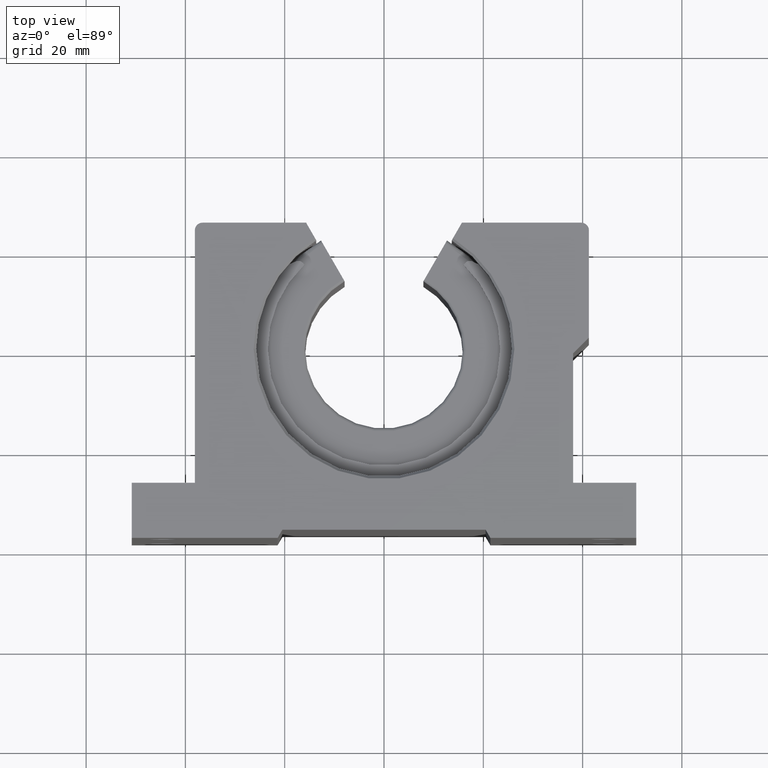
[diagram: clean part render]
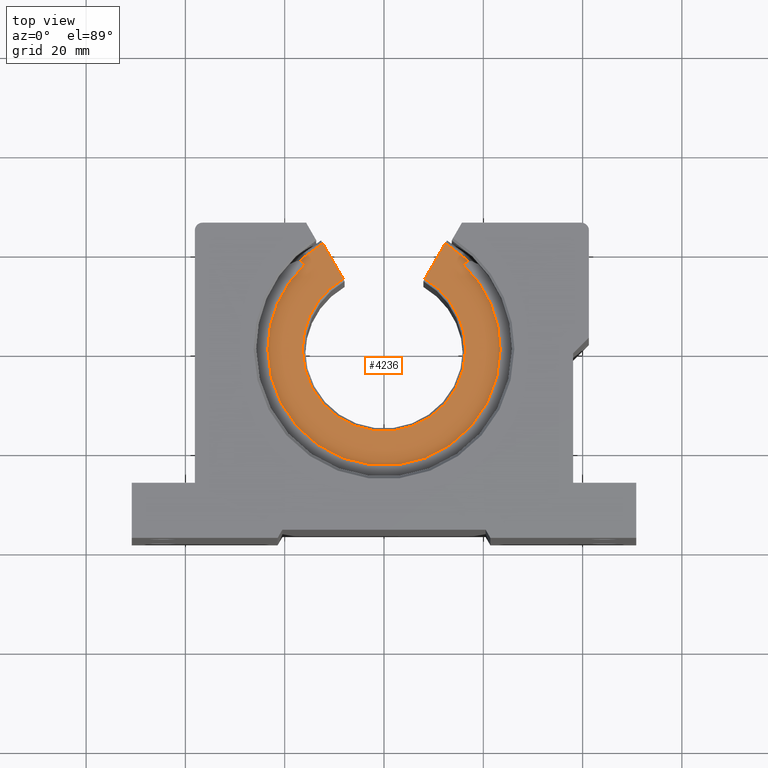
[diagram: same view with one face highlighted and labeled with its STEP entity id]
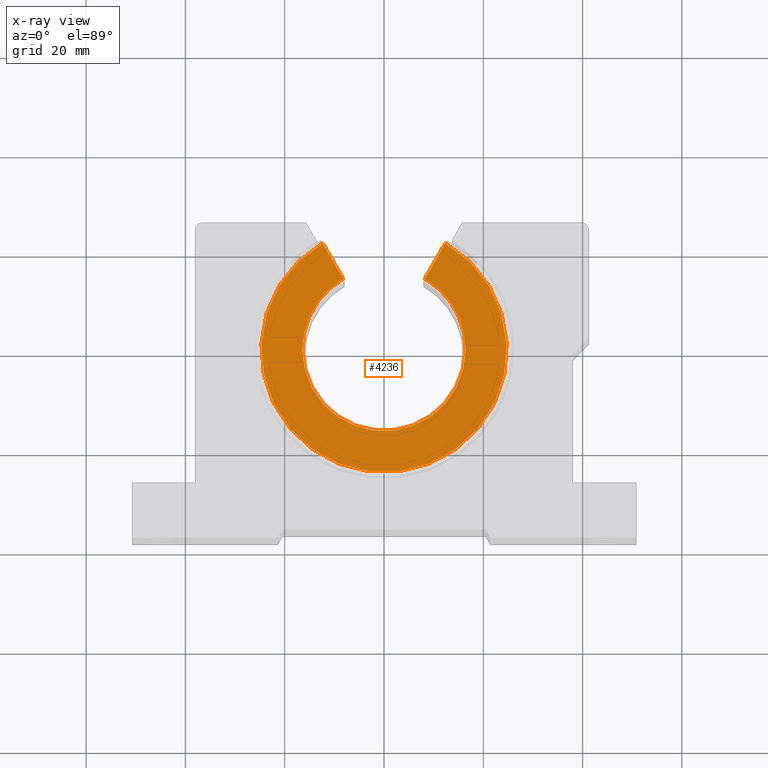
[diagram: x-ray of the same camera — body ghosted, the highlighted face saturated]
A machine part, top view. The second image highlights one B-rep face of the part: STEP entity #4236.
The next image is the same camera in x-ray: the body ghosted, the highlighted face saturated — about 0% of this face is hidden behind the body in this view.
In plain terms, the highlighted planar face has unit normal (0, -0, -1).
Its self-contained STEP definition (entity closure, byte-faithful):
#50 = CIRCLE ( 'NONE', #5138, 0.6474999999999999645 ) ;
#241 = CIRCLE ( 'NONE', #4523, 0.9730250000000000288 ) ;
#372 = DIRECTION ( 'NONE',  ( 0.000000000000000000, -1.000000000000000000, 0.000000000000000000 ) ) ;
#421 = DIRECTION ( 'NONE',  ( -0.000000000000000000, -7.409750808357105022E-17, 1.000000000000000000 ) ) ;
#491 = CARTESIAN_POINT ( 'NONE',  ( 0.6474999999999999645, 7.929588024479112331E-17, 1.308750000000000080 ) ) ;
#543 = CARTESIAN_POINT ( 'NONE',  ( 0.000000000000000000, 0.000000000000000000, 1.308750000000000080 ) ) ;
#613 = ORIENTED_EDGE ( 'NONE', *, *, #3045, .F. ) ;
#681 = VERTEX_POINT ( 'NONE', #491 ) ;
#1000 = CARTESIAN_POINT ( 'NONE',  ( 0.000000000000000000, 0.9730249999999999178, 1.308749999999999858 ) ) ;
#1105 = LINE ( 'NONE', #5548, #7183 ) ;
#1145 = DIRECTION ( 'NONE',  ( -0.4999999999999979461, 0.8660254037844399289, -1.922962686383567021E-16 ) ) ;
#1496 = DIRECTION ( 'NONE',  ( -0.000000000000000000, -7.409750808357105022E-17, 1.000000000000000000 ) ) ;
#1555 = VERTEX_POINT ( 'NONE', #4939 ) ;
#1665 = EDGE_CURVE ( 'NONE', #681, #6645, #50, .T. ) ;
#2137 = DIRECTION ( 'NONE',  ( 0.000000000000000000, -1.000000000000000000, 0.000000000000000000 ) ) ;
#2200 = CARTESIAN_POINT ( 'NONE',  ( 0.4861250285327137766, 0.8428879565274782770, 1.308749999999999858 ) ) ;
#2467 = LINE ( 'NONE', #2498, #6097 ) ;
#2498 = CARTESIAN_POINT ( 'NONE',  ( 0.3125000000000000000, 0.5421605856432205606, 1.308750000000000080 ) ) ;
#2517 = DIRECTION ( 'NONE',  ( 0.000000000000000000, 1.000000000000000000, -1.479470968414602948E-16 ) ) ;
#2548 = VERTEX_POINT ( 'NONE', #5738 ) ;
#2866 = EDGE_CURVE ( 'NONE', #2548, #3729, #1105, .T. ) ;
#3019 = CIRCLE ( 'NONE', #6230, 0.6474999999999999645 ) ;
#3045 = EDGE_CURVE ( 'NONE', #2548, #1555, #3019, .T. ) ;
#3398 = EDGE_LOOP ( 'NONE', ( #613, #6543, #7306, #6108, #7140, #4677 ) ) ;
#3648 = VERTEX_POINT ( 'NONE', #2200 ) ;
#3678 = CARTESIAN_POINT ( 'NONE',  ( 0.000000000000000000, 0.000000000000000000, 1.308750000000000080 ) ) ;
#3729 = VERTEX_POINT ( 'NONE', #4487 ) ;
#4236 = ADVANCED_FACE ( 'NONE', ( #5409 ), #7156, .F. ) ;
#4487 = CARTESIAN_POINT ( 'NONE',  ( -0.4861250285327136100, 0.8428879565274781660, 1.308749999999999858 ) ) ;
#4523 = AXIS2_PLACEMENT_3D ( 'NONE', #6776, #4886, #7151 ) ;
#4676 = CARTESIAN_POINT ( 'NONE',  ( 0.3233625026825318605, 0.5609749921867192013, 1.308750000000000080 ) ) ;
#4677 = ORIENTED_EDGE ( 'NONE', *, *, #6514, .F. ) ;
#4851 = DIRECTION ( 'NONE',  ( 0.000000000000000000, -1.479470968414602948E-16, -1.000000000000000000 ) ) ;
#4886 = DIRECTION ( 'NONE',  ( 0.000000000000000000, -7.409750808357105022E-17, 1.000000000000000000 ) ) ;
#4939 = CARTESIAN_POINT ( 'NONE',  ( -0.6474999999999999645, 0.000000000000000000, 1.308750000000000080 ) ) ;
#5138 = AXIS2_PLACEMENT_3D ( 'NONE', #6604, #1496, #372 ) ;
#5275 = DIRECTION ( 'NONE',  ( -0.4999999999999979461, -0.8660254037844397068, 1.922962686383566775E-16 ) ) ;
#5384 = DIRECTION ( 'NONE',  ( 0.000000000000000000, -1.000000000000000000, 0.000000000000000000 ) ) ;
#5409 = FACE_OUTER_BOUND ( 'NONE', #3398, .T. ) ;
#5548 = CARTESIAN_POINT ( 'NONE',  ( -0.6129181009488572363, 1.062500000000000222, 1.308749999999999858 ) ) ;
#5618 = AXIS2_PLACEMENT_3D ( 'NONE', #543, #421, #2137 ) ;
#5738 = CARTESIAN_POINT ( 'NONE',  ( -0.3233625026825319715, 0.5609749921867193123, 1.308750000000000080 ) ) ;
#6097 = VECTOR ( 'NONE', #5275, 39.37007874015748854 ) ;
#6108 = ORIENTED_EDGE ( 'NONE', *, *, #6383, .T. ) ;
#6193 = EDGE_CURVE ( 'NONE', #3729, #3648, #241, .T. ) ;
#6230 = AXIS2_PLACEMENT_3D ( 'NONE', #3678, #6488, #5384 ) ;
#6383 = EDGE_CURVE ( 'NONE', #3648, #6645, #2467, .T. ) ;
#6488 = DIRECTION ( 'NONE',  ( -0.000000000000000000, -7.409750808357105022E-17, 1.000000000000000000 ) ) ;
#6489 = AXIS2_PLACEMENT_3D ( 'NONE', #1000, #4851, #2517 ) ;
#6514 = EDGE_CURVE ( 'NONE', #1555, #681, #6806, .T. ) ;
#6543 = ORIENTED_EDGE ( 'NONE', *, *, #2866, .T. ) ;
#6604 = CARTESIAN_POINT ( 'NONE',  ( 0.000000000000000000, 0.000000000000000000, 1.308750000000000080 ) ) ;
#6645 = VERTEX_POINT ( 'NONE', #4676 ) ;
#6776 = CARTESIAN_POINT ( 'NONE',  ( -0.000000000000000000, -9.697511370437362114E-17, 1.308750000000000080 ) ) ;
#6806 = CIRCLE ( 'NONE', #5618, 0.6474999999999999645 ) ;
#7140 = ORIENTED_EDGE ( 'NONE', *, *, #1665, .F. ) ;
#7151 = DIRECTION ( 'NONE',  ( 0.000000000000000000, 1.000000000000000000, -2.807582532477853317E-16 ) ) ;
#7156 = PLANE ( 'NONE',  #6489 ) ;
#7183 = VECTOR ( 'NONE', #1145, 39.37007874015748854 ) ;
#7306 = ORIENTED_EDGE ( 'NONE', *, *, #6193, .T. ) ;